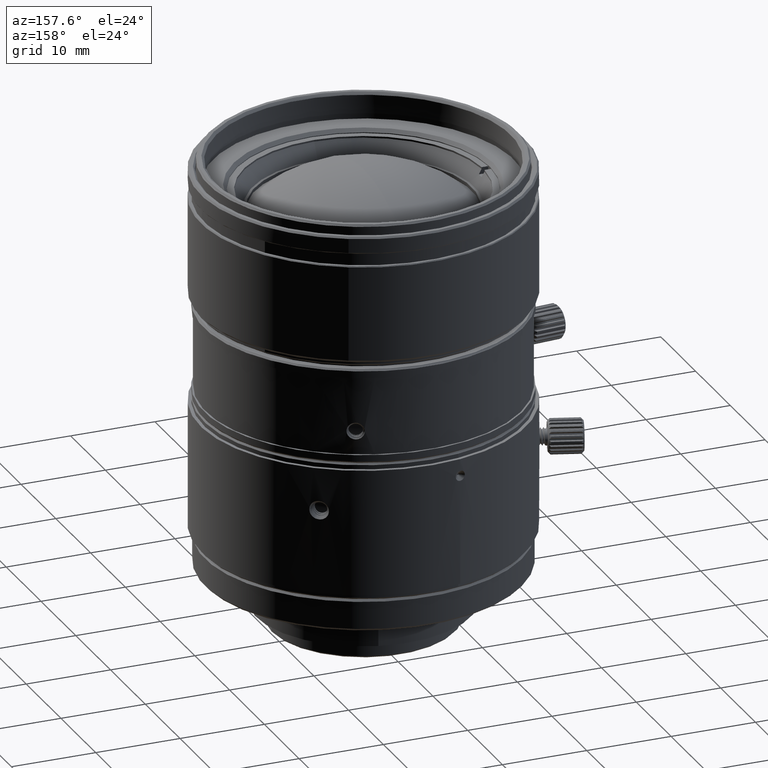
[diagram: clean part render]
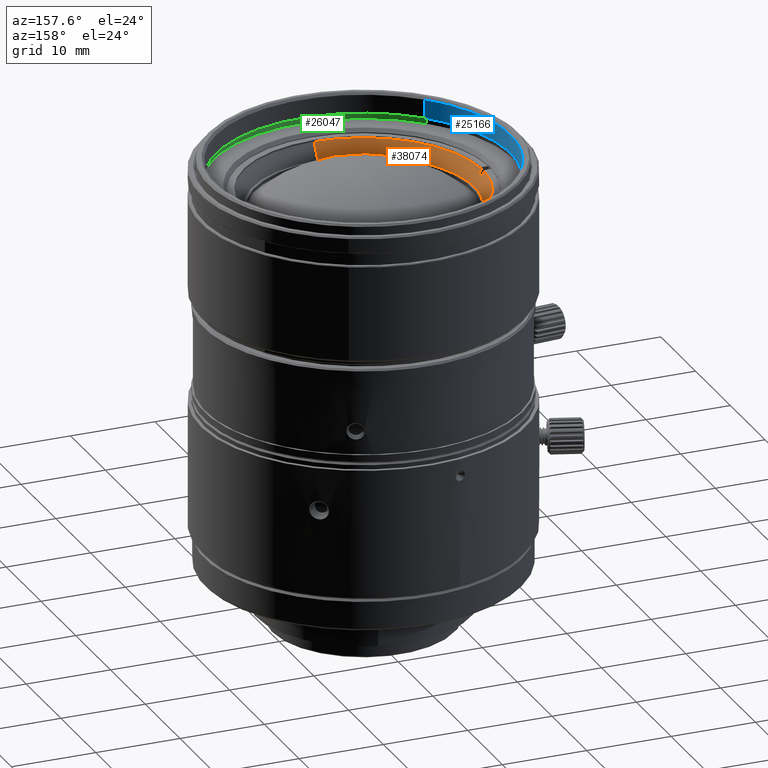
[diagram: same view with three faces highlighted in distinct colors, each labeled with its STEP entity id]
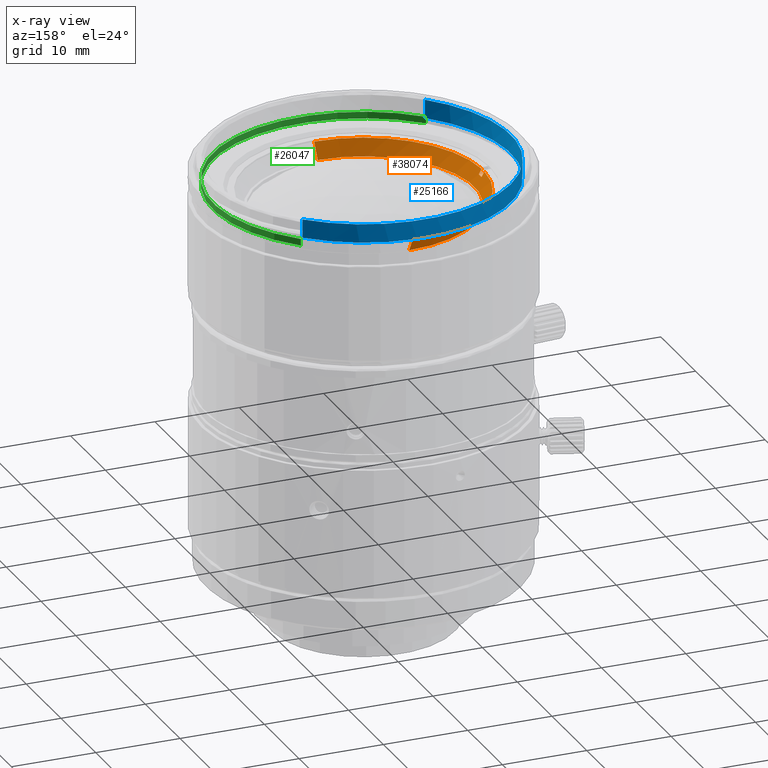
[diagram: x-ray of the same camera — body ghosted, the three highlighted faces saturated]
A machine part, auxiliary view with three faces highlighted in distinct colors.
The next image is the same camera in x-ray (body ghosted, the three faces saturated) — at least one of them is partly hidden behind the body in this view.
Their STEP definitions:

[orange] entity #38074 — the highlighted conical surface has half-angle 30.008 deg.
#238 = CARTESIAN_POINT ( 'NONE',  ( 0.000000000000000000, 14.18799999928211442, 42.82900000000000063 ) ) ;
#1675 = LINE ( 'NONE', #4188, #23614 ) ;
#2607 = AXIS2_PLACEMENT_3D ( 'NONE', #13901, #38018, #30810 ) ;
#3661 = CARTESIAN_POINT ( 'NONE',  ( 0.000000000000000000, -14.18799999999999883, 42.82900000000000063 ) ) ;
#4188 = CARTESIAN_POINT ( 'NONE',  ( 0.000000000000000000, 13.66849999999999987, 41.92950000000000443 ) ) ;
#4407 = DIRECTION ( 'NONE',  ( 0.000000000000000000, 0.5001252177614151639, 0.8659530972050951680 ) ) ;
#5784 = CARTESIAN_POINT ( 'NONE',  ( -1.673908477368865380E-15, -13.14899999999999913, 41.02999999999999403 ) ) ;
#5849 = CIRCLE ( 'NONE', #14490, 14.18799999999999883 ) ;
#8172 = VERTEX_POINT ( 'NONE', #44293 ) ;
#9579 = DIRECTION ( 'NONE',  ( 0.000000000000000000, 8.215714815559919577E-17, 1.000000000000000000 ) ) ;
#10248 = CARTESIAN_POINT ( 'NONE',  ( 0.000000000000000000, 0.000000000000000000, 41.92950000000000443 ) ) ;
#10540 = CARTESIAN_POINT ( 'NONE',  ( -14.18236031131999830, -0.4000000000000000222, 42.82900000000000063 ) ) ;
#10550 = DIRECTION ( 'NONE',  ( 0.000000000000000000, 0.000000000000000000, 1.000000000000000000 ) ) ;
#12772 = CARTESIAN_POINT ( 'NONE',  ( -14.18236031131999830, 0.4000000000000000222, 42.82900000000000063 ) ) ;
#13850 = ORIENTED_EDGE ( 'NONE', *, *, #19715, .T. ) ;
#13901 = CARTESIAN_POINT ( 'NONE',  ( 0.000000000000000000, 0.000000000000000000, 42.22899999999999920 ) ) ;
#14139 = CIRCLE ( 'NONE', #42920, 14.18799999999999706 ) ;
#14490 = AXIS2_PLACEMENT_3D ( 'NONE', #33978, #23825, #20212 ) ;
#14642 = VERTEX_POINT ( 'NONE', #5784 ) ;
#15261 = CARTESIAN_POINT ( 'NONE',  ( -13.83569321388999995, 0.4000000000000000222, 42.22899999999999920 ) ) ;
#15659 = LINE ( 'NONE', #43154, #24771 ) ;
#15764 = DIRECTION ( 'NONE',  ( 0.5002743291576571272, 0.000000000000000000, -0.8658669618283492131 ) ) ;
#16133 = CARTESIAN_POINT ( 'NONE',  ( 0.000000000000000000, 13.14899999999999913, 41.02999999999999403 ) ) ;
#16282 = CIRCLE ( 'NONE', #2607, 13.84147415231000799 ) ;
#16811 = VECTOR ( 'NONE', #15764, 1000.000000000000114 ) ;
#16839 = DIRECTION ( 'NONE',  ( 0.000000000000000000, 1.000000000000000000, 0.000000000000000000 ) ) ;
#17839 = VERTEX_POINT ( 'NONE', #10540 ) ;
#18082 = VERTEX_POINT ( 'NONE', #3661 ) ;
#19121 = CIRCLE ( 'NONE', #36425, 13.14899999999999913 ) ;
#19480 = FACE_OUTER_BOUND ( 'NONE', #38304, .T. ) ;
#19715 = EDGE_CURVE ( 'NONE', #24131, #23810, #5849, .T. ) ;
#20212 = DIRECTION ( 'NONE',  ( 0.000000000000000000, 1.000000000000000000, 0.000000000000000000 ) ) ;
#20642 = CARTESIAN_POINT ( 'NONE',  ( 0.000000000000000000, 0.000000000000000000, 42.82900000000000063 ) ) ;
#21000 = ORIENTED_EDGE ( 'NONE', *, *, #21585, .F. ) ;
#21071 = AXIS2_PLACEMENT_3D ( 'NONE', #10248, #9579, #33251 ) ;
#21585 = EDGE_CURVE ( 'NONE', #14642, #18082, #42315, .T. ) ;
#22077 = VERTEX_POINT ( 'NONE', #15261 ) ;
#23614 = VECTOR ( 'NONE', #4407, 1000.000000000000227 ) ;
#23810 = VERTEX_POINT ( 'NONE', #12772 ) ;
#23825 = DIRECTION ( 'NONE',  ( 0.000000000000000000, 0.000000000000000000, 1.000000000000000000 ) ) ;
#24131 = VERTEX_POINT ( 'NONE', #238 ) ;
#24771 = VECTOR ( 'NONE', #43599, 1000.000000000000114 ) ;
#27786 = EDGE_CURVE ( 'NONE', #32704, #14642, #19121, .T. ) ;
#28583 = ORIENTED_EDGE ( 'NONE', *, *, #41277, .T. ) ;
#28792 = CARTESIAN_POINT ( 'NONE',  ( -1.673908477414559753E-15, -13.66849999999999987, 41.92950000000000443 ) ) ;
#29313 = ORIENTED_EDGE ( 'NONE', *, *, #27786, .F. ) ;
#29516 = CARTESIAN_POINT ( 'NONE',  ( -14.00878076229750135, 0.4000000000000000222, 42.52857271863930322 ) ) ;
#29740 = LINE ( 'NONE', #29516, #16811 ) ;
#30810 = DIRECTION ( 'NONE',  ( -0.9995823466236514188, -0.02889865599563858425, 0.000000000000000000 ) ) ;
#31031 = DIRECTION ( 'NONE',  ( -0.9996025029120600980, -0.02819283901888890859, 0.000000000000000000 ) ) ;
#31491 = EDGE_CURVE ( 'NONE', #8172, #22077, #16282, .T. ) ;
#31566 = EDGE_CURVE ( 'NONE', #17839, #18082, #14139, .T. ) ;
#32704 = VERTEX_POINT ( 'NONE', #16133 ) ;
#33251 = DIRECTION ( 'NONE',  ( 0.000000000000000000, 1.000000000000000000, 0.000000000000000000 ) ) ;
#33936 = EDGE_CURVE ( 'NONE', #32704, #24131, #1675, .T. ) ;
#33978 = CARTESIAN_POINT ( 'NONE',  ( 0.000000000000000000, 0.000000000000000000, 42.82900000000000063 ) ) ;
#34416 = DIRECTION ( 'NONE',  ( 0.000000000000000000, 0.000000000000000000, 1.000000000000000000 ) ) ;
#34487 = ORIENTED_EDGE ( 'NONE', *, *, #40435, .T. ) ;
#35008 = ORIENTED_EDGE ( 'NONE', *, *, #31566, .T. ) ;
#36425 = AXIS2_PLACEMENT_3D ( 'NONE', #44124, #10550, #16839 ) ;
#38018 = DIRECTION ( 'NONE',  ( 0.000000000000000000, 0.000000000000000000, -1.000000000000000000 ) ) ;
#38074 = ADVANCED_FACE ( 'NONE', ( #19480 ), #41962, .F. ) ;
#38304 = EDGE_LOOP ( 'NONE', ( #21000, #29313, #41520, #13850, #34487, #44328, #28583, #35008 ) ) ;
#40435 = EDGE_CURVE ( 'NONE', #23810, #22077, #29740, .T. ) ;
#41277 = EDGE_CURVE ( 'NONE', #8172, #17839, #15659, .T. ) ;
#41520 = ORIENTED_EDGE ( 'NONE', *, *, #33936, .T. ) ;
#41962 = CONICAL_SURFACE ( 'NONE', #21071, 13.66849999999999987, 0.5237433706508649589 ) ;
#42315 = LINE ( 'NONE', #28792, #43489 ) ;
#42534 = DIRECTION ( 'NONE',  ( -6.124767471043899921E-17, -0.5001252177614150529, 0.8659530972050952791 ) ) ;
#42920 = AXIS2_PLACEMENT_3D ( 'NONE', #20642, #34416, #31031 ) ;
#43154 = CARTESIAN_POINT ( 'NONE',  ( -14.00877885349500040, -0.4000000000000000222, 42.52856941494499665 ) ) ;
#43489 = VECTOR ( 'NONE', #42534, 1000.000000000000114 ) ;
#43599 = DIRECTION ( 'NONE',  ( -0.5002818922706318006, 0.000000000000000000, 0.8658625920237668083 ) ) ;
#44124 = CARTESIAN_POINT ( 'NONE',  ( 0.000000000000000000, 0.000000000000000000, 41.02999999999999403 ) ) ;
#44293 = CARTESIAN_POINT ( 'NONE',  ( -13.83569321388999995, -0.4000000000000000222, 42.22899999999999920 ) ) ;
#44328 = ORIENTED_EDGE ( 'NONE', *, *, #31491, .F. ) ;

[blue] entity #25166 — the highlighted cylindrical surface (partial cylindrical patch) has radius 17.48 mm, axis along (0, 0, 1).
#313 = ORIENTED_EDGE ( 'NONE', *, *, #23085, .F. ) ;
#333 = DIRECTION ( 'NONE',  ( 0.7071067811865475727, -0.7071067811865475727, 0.000000000000000000 ) ) ;
#436 = AXIS2_PLACEMENT_3D ( 'NONE', #673, #35382, #14870 ) ;
#673 = CARTESIAN_POINT ( 'NONE',  ( 0.000000000000000000, 0.000000000000000000, 12.68249999999999922 ) ) ;
#1641 = CIRCLE ( 'NONE', #35474, 17.47999999999999687 ) ;
#4236 = VECTOR ( 'NONE', #18581, 1000.000000000000000 ) ;
#4905 = CARTESIAN_POINT ( 'NONE',  ( -12.36022653514085157, -12.36022653514085157, 44.31000000000000227 ) ) ;
#5915 = AXIS2_PLACEMENT_3D ( 'NONE', #27263, #6988, #37624 ) ;
#6988 = DIRECTION ( 'NONE',  ( 0.000000000000000000, 0.000000000000000000, 1.000000000000000000 ) ) ;
#7523 = CARTESIAN_POINT ( 'NONE',  ( -12.36022653533123794, 12.36022653533124149, 46.51000000000000512 ) ) ;
#11807 = DIRECTION ( 'NONE',  ( 0.000000000000000000, 0.000000000000000000, -1.000000000000000000 ) ) ;
#13544 = LINE ( 'NONE', #27284, #17652 ) ;
#14870 = DIRECTION ( 'NONE',  ( -0.7071067811865475727, -0.7071067811865475727, 0.000000000000000000 ) ) ;
#15487 = ORIENTED_EDGE ( 'NONE', *, *, #18536, .T. ) ;
#15848 = DIRECTION ( 'NONE',  ( 0.04191929957131940859, 0.9991209998410851556, 0.000000000000000000 ) ) ;
#16183 = VERTEX_POINT ( 'NONE', #38354 ) ;
#17116 = AXIS2_PLACEMENT_3D ( 'NONE', #44520, #34378, #333 ) ;
#17652 = VECTOR ( 'NONE', #27061, 1000.000000000000000 ) ;
#18536 = EDGE_CURVE ( 'NONE', #16183, #21215, #24608, .T. ) ;
#18581 = DIRECTION ( 'NONE',  ( 0.000000000000000000, 0.000000000000000000, 1.000000000000000000 ) ) ;
#20120 = CARTESIAN_POINT ( 'NONE',  ( 12.36022653514085334, 12.36022653514084979, 44.31000000000000227 ) ) ;
#21215 = VERTEX_POINT ( 'NONE', #7523 ) ;
#21725 = CARTESIAN_POINT ( 'NONE',  ( 0.000000000000000000, 0.000000000000000000, 44.31000000000000227 ) ) ;
#22876 = ORIENTED_EDGE ( 'NONE', *, *, #32835, .T. ) ;
#23085 = EDGE_CURVE ( 'NONE', #23710, #33689, #13544, .T. ) ;
#23710 = VERTEX_POINT ( 'NONE', #4905 ) ;
#24608 = CIRCLE ( 'NONE', #5915, 17.48000000000001108 ) ;
#24610 = EDGE_LOOP ( 'NONE', ( #31875, #39654, #15487, #22876, #313 ) ) ;
#25166 = ADVANCED_FACE ( 'NONE', ( #25441 ), #39184, .F. ) ;
#25441 = FACE_OUTER_BOUND ( 'NONE', #24610, .T. ) ;
#26570 = VERTEX_POINT ( 'NONE', #20120 ) ;
#27061 = DIRECTION ( 'NONE',  ( 0.000000000000000000, 0.000000000000000000, 1.000000000000000000 ) ) ;
#27263 = CARTESIAN_POINT ( 'NONE',  ( 0.000000000000000000, 0.000000000000000000, 46.51000000000000512 ) ) ;
#27284 = CARTESIAN_POINT ( 'NONE',  ( -12.36022653514085867, -12.36022653514085867, 12.68249999999999922 ) ) ;
#31875 = ORIENTED_EDGE ( 'NONE', *, *, #38175, .T. ) ;
#32389 = CARTESIAN_POINT ( 'NONE',  ( -12.36022653514085157, -12.36022653514085157, 46.51000000000000512 ) ) ;
#32835 = EDGE_CURVE ( 'NONE', #21215, #33689, #38013, .T. ) ;
#33689 = VERTEX_POINT ( 'NONE', #32389 ) ;
#34378 = DIRECTION ( 'NONE',  ( 0.000000000000000000, 0.000000000000000000, 1.000000000000000000 ) ) ;
#35222 = EDGE_CURVE ( 'NONE', #26570, #16183, #41193, .T. ) ;
#35382 = DIRECTION ( 'NONE',  ( 0.000000000000000000, 0.000000000000000000, 1.000000000000000000 ) ) ;
#35474 = AXIS2_PLACEMENT_3D ( 'NONE', #21725, #11807, #15848 ) ;
#37624 = DIRECTION ( 'NONE',  ( 0.7071067811865475727, -0.7071067811865475727, 0.000000000000000000 ) ) ;
#38013 = CIRCLE ( 'NONE', #17116, 17.48000000000001108 ) ;
#38057 = CARTESIAN_POINT ( 'NONE',  ( 12.36022653514086045, 12.36022653514085690, 12.68249999999999922 ) ) ;
#38175 = EDGE_CURVE ( 'NONE', #23710, #26570, #1641, .T. ) ;
#38354 = CARTESIAN_POINT ( 'NONE',  ( 12.36022653514085334, 12.36022653514084979, 46.51000000000000512 ) ) ;
#39184 = CYLINDRICAL_SURFACE ( 'NONE', #436, 17.48000000000001108 ) ;
#39654 = ORIENTED_EDGE ( 'NONE', *, *, #35222, .T. ) ;
#41193 = LINE ( 'NONE', #38057, #4236 ) ;
#44520 = CARTESIAN_POINT ( 'NONE',  ( 0.000000000000000000, 0.000000000000000000, 46.51000000000000512 ) ) ;

[green] entity #26047 — the highlighted cylindrical surface (partial cylindrical patch) has radius 17.85 mm, axis along (0, 0, 1).
#948 = CARTESIAN_POINT ( 'NONE',  ( -12.62185604417988216, -12.62185604417988216, 44.31000000000000227 ) ) ;
#2419 = DIRECTION ( 'NONE',  ( 0.000000000000000000, 0.000000000000000000, 1.000000000000000000 ) ) ;
#2902 = CARTESIAN_POINT ( 'NONE',  ( -12.62185604417987506, -12.62185604417987506, 43.50999999999999801 ) ) ;
#3415 = EDGE_CURVE ( 'NONE', #17763, #23473, #15297, .T. ) ;
#3797 = CARTESIAN_POINT ( 'NONE',  ( 12.62185604417988394, 12.62185604417988039, 12.68249999999999922 ) ) ;
#4859 = LINE ( 'NONE', #3797, #15737 ) ;
#6055 = EDGE_CURVE ( 'NONE', #23473, #27569, #32628, .T. ) ;
#6223 = DIRECTION ( 'NONE',  ( 0.000000000000000000, 0.000000000000000000, 1.000000000000000000 ) ) ;
#6620 = ORIENTED_EDGE ( 'NONE', *, *, #3415, .T. ) ;
#9596 = CYLINDRICAL_SURFACE ( 'NONE', #39224, 17.85000000000001208 ) ;
#10426 = AXIS2_PLACEMENT_3D ( 'NONE', #41692, #11663, #41915 ) ;
#11663 = DIRECTION ( 'NONE',  ( 0.000000000000000000, 0.000000000000000000, 1.000000000000000000 ) ) ;
#11810 = CARTESIAN_POINT ( 'NONE',  ( 12.62185604417987683, 12.62185604417987328, 43.50999999999999801 ) ) ;
#13814 = VECTOR ( 'NONE', #2419, 1000.000000000000000 ) ;
#14607 = AXIS2_PLACEMENT_3D ( 'NONE', #40868, #37721, #33898 ) ;
#15224 = DIRECTION ( 'NONE',  ( 0.000000000000000000, 0.000000000000000000, 1.000000000000000000 ) ) ;
#15297 = CIRCLE ( 'NONE', #14607, 17.85000000000001208 ) ;
#15737 = VECTOR ( 'NONE', #15224, 1000.000000000000000 ) ;
#16791 = CARTESIAN_POINT ( 'NONE',  ( 0.000000000000000000, 0.000000000000000000, 12.68249999999999922 ) ) ;
#17468 = DIRECTION ( 'NONE',  ( -0.7071067811865475727, -0.7071067811865475727, 0.000000000000000000 ) ) ;
#17763 = VERTEX_POINT ( 'NONE', #11810 ) ;
#20497 = ORIENTED_EDGE ( 'NONE', *, *, #22051, .T. ) ;
#21269 = CARTESIAN_POINT ( 'NONE',  ( 12.62185604417987683, 12.62185604417987328, 44.31000000000000227 ) ) ;
#22051 = EDGE_CURVE ( 'NONE', #27569, #30875, #38516, .T. ) ;
#23473 = VERTEX_POINT ( 'NONE', #2902 ) ;
#25864 = CARTESIAN_POINT ( 'NONE',  ( -12.62185604417988216, -12.62185604417988216, 12.68249999999999922 ) ) ;
#26047 = ADVANCED_FACE ( 'NONE', ( #26943 ), #9596, .F. ) ;
#26943 = FACE_OUTER_BOUND ( 'NONE', #29633, .T. ) ;
#27569 = VERTEX_POINT ( 'NONE', #948 ) ;
#29633 = EDGE_LOOP ( 'NONE', ( #43787, #6620, #36983, #20497 ) ) ;
#30875 = VERTEX_POINT ( 'NONE', #21269 ) ;
#32628 = LINE ( 'NONE', #25864, #13814 ) ;
#33898 = DIRECTION ( 'NONE',  ( 0.7071067811865475727, 0.7071067811865475727, 0.000000000000000000 ) ) ;
#35201 = EDGE_CURVE ( 'NONE', #17763, #30875, #4859, .T. ) ;
#36983 = ORIENTED_EDGE ( 'NONE', *, *, #6055, .T. ) ;
#37721 = DIRECTION ( 'NONE',  ( 0.000000000000000000, 0.000000000000000000, -1.000000000000000000 ) ) ;
#38516 = CIRCLE ( 'NONE', #10426, 17.85000000000001208 ) ;
#39224 = AXIS2_PLACEMENT_3D ( 'NONE', #16791, #6223, #17468 ) ;
#40868 = CARTESIAN_POINT ( 'NONE',  ( 0.000000000000000000, 0.000000000000000000, 43.50999999999999801 ) ) ;
#41692 = CARTESIAN_POINT ( 'NONE',  ( 0.000000000000000000, 0.000000000000000000, 44.31000000000000227 ) ) ;
#41915 = DIRECTION ( 'NONE',  ( -0.7071067811865475727, -0.7071067811865475727, 0.000000000000000000 ) ) ;
#43787 = ORIENTED_EDGE ( 'NONE', *, *, #35201, .F. ) ;